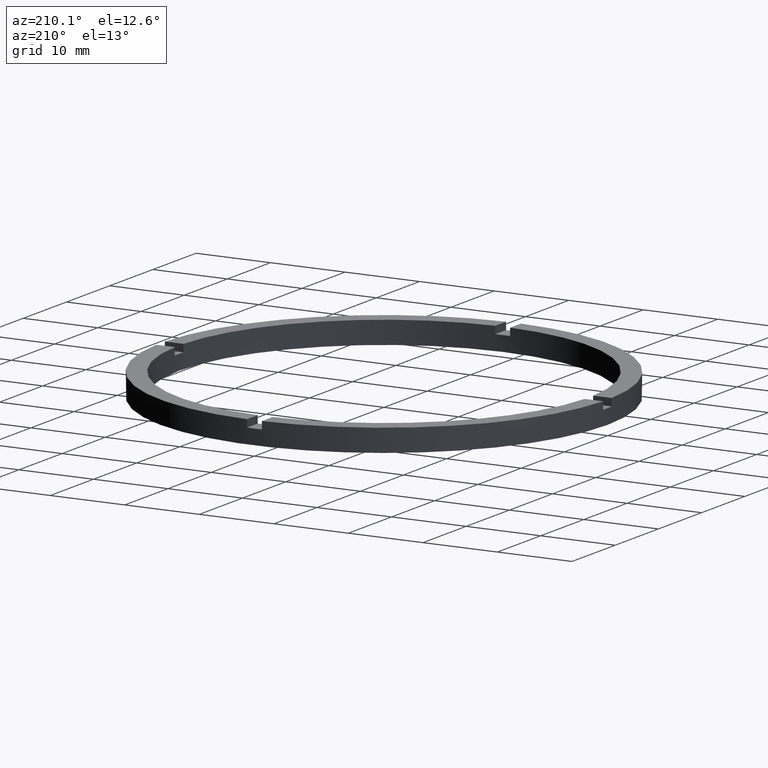
[diagram: clean part render]
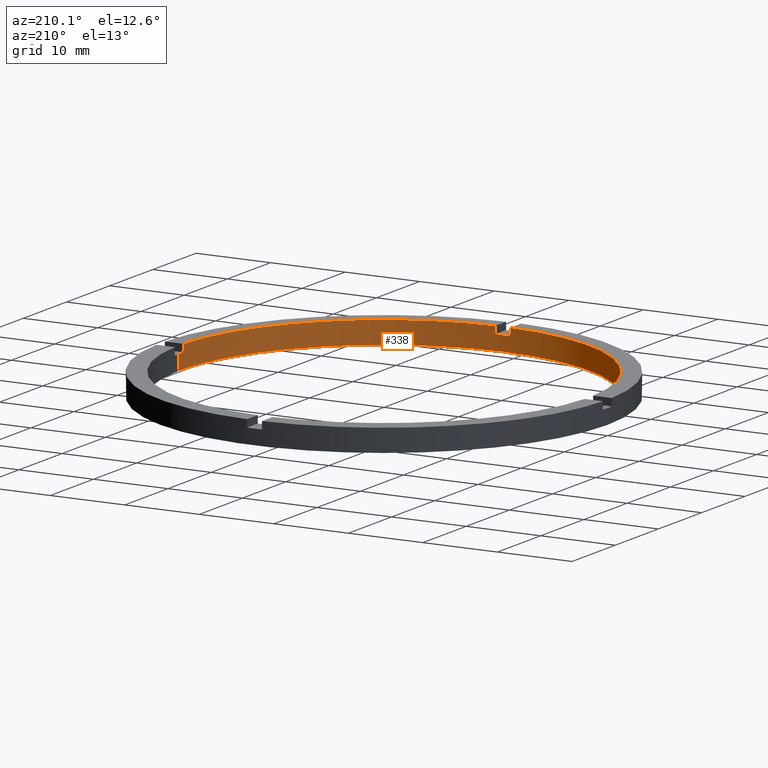
[diagram: same view with one face highlighted and labeled with its STEP entity id]
A machine part, auxiliary view. The second image highlights one B-rep face of the part: STEP entity #338.
In plain terms, the highlighted cylindrical surface (partial cylindrical patch) has radius 27.5 mm, axis along (-0, -0, -1).
Its self-contained STEP definition (entity closure, byte-faithful):
#2 = ORIENTED_EDGE ( 'NONE', *, *, #440, .F. ) ;
#8 = DIRECTION ( 'NONE',  ( 0.000000000000000000, 0.000000000000000000, 1.000000000000000000 ) ) ;
#15 = CARTESIAN_POINT ( 'NONE',  ( -1.000000000000159428, -27.48181216732258392, 3.000000000000000000 ) ) ;
#22 = VECTOR ( 'NONE', #313, 1000.000000000000000 ) ;
#33 = LINE ( 'NONE', #15, #296 ) ;
#34 = CIRCLE ( 'NONE', #760, 27.50000000000000000 ) ;
#37 = CIRCLE ( 'NONE', #153, 27.50000000000000000 ) ;
#45 = AXIS2_PLACEMENT_3D ( 'NONE', #59, #265, #444 ) ;
#51 = AXIS2_PLACEMENT_3D ( 'NONE', #626, #574, #225 ) ;
#59 = CARTESIAN_POINT ( 'NONE',  ( 0.000000000000000000, 0.000000000000000000, 3.000000000000000000 ) ) ;
#70 = LINE ( 'NONE', #449, #337 ) ;
#72 = CARTESIAN_POINT ( 'NONE',  ( 0.000000000000000000, 0.000000000000000000, 0.000000000000000000 ) ) ;
#83 = CARTESIAN_POINT ( 'NONE',  ( 0.9999999999998406830, -27.48181216732259458, 3.000000000000000000 ) ) ;
#97 = CARTESIAN_POINT ( 'NONE',  ( 0.000000000000000000, 0.000000000000000000, 2.000000000000000000 ) ) ;
#103 = CARTESIAN_POINT ( 'NONE',  ( 0.9999999999998406830, -27.48181216732259458, 2.000000000000000000 ) ) ;
#104 = AXIS2_PLACEMENT_3D ( 'NONE', #434, #734, #212 ) ;
#108 = CYLINDRICAL_SURFACE ( 'NONE', #192, 27.50000000000000000 ) ;
#122 = CARTESIAN_POINT ( 'NONE',  ( -27.50000000000000000, 0.000000000000000000, 0.000000000000000000 ) ) ;
#130 = ORIENTED_EDGE ( 'NONE', *, *, #327, .F. ) ;
#139 = CARTESIAN_POINT ( 'NONE',  ( 27.50000000000000000, 3.367778697655221307E-15, 3.000000000000000000 ) ) ;
#142 = DIRECTION ( 'NONE',  ( 1.000000000000000000, 0.000000000000000000, 0.000000000000000000 ) ) ;
#152 = DIRECTION ( 'NONE',  ( 0.000000000000000000, 0.000000000000000000, 1.000000000000000000 ) ) ;
#153 = AXIS2_PLACEMENT_3D ( 'NONE', #72, #8, #649 ) ;
#154 = ORIENTED_EDGE ( 'NONE', *, *, #480, .F. ) ;
#155 = ORIENTED_EDGE ( 'NONE', *, *, #727, .F. ) ;
#157 = EDGE_CURVE ( 'NONE', #241, #690, #285, .T. ) ;
#159 = VECTOR ( 'NONE', #500, 1000.000000000000000 ) ;
#161 = LINE ( 'NONE', #250, #423 ) ;
#187 = ORIENTED_EDGE ( 'NONE', *, *, #765, .T. ) ;
#192 = AXIS2_PLACEMENT_3D ( 'NONE', #505, #198, #656 ) ;
#197 = EDGE_CURVE ( 'NONE', #674, #395, #34, .T. ) ;
#198 = DIRECTION ( 'NONE',  ( -0.000000000000000000, -0.000000000000000000, -1.000000000000000000 ) ) ;
#205 = ORIENTED_EDGE ( 'NONE', *, *, #731, .T. ) ;
#212 = DIRECTION ( 'NONE',  ( 1.000000000000000000, 0.000000000000000000, 0.000000000000000000 ) ) ;
#215 = DIRECTION ( 'NONE',  ( -0.000000000000000000, -0.000000000000000000, -1.000000000000000000 ) ) ;
#225 = DIRECTION ( 'NONE',  ( 1.000000000000000000, 0.000000000000000000, 0.000000000000000000 ) ) ;
#241 = VERTEX_POINT ( 'NONE', #519 ) ;
#246 = CARTESIAN_POINT ( 'NONE',  ( -27.48181216732259102, -1.000000000000027756, 2.000000000000000000 ) ) ;
#248 = CARTESIAN_POINT ( 'NONE',  ( 27.50000000000000000, 3.367778697655221307E-15, 2.000000000000000000 ) ) ;
#250 = CARTESIAN_POINT ( 'NONE',  ( -27.50000000000000000, 0.000000000000000000, 3.000000000000000000 ) ) ;
#253 = VERTEX_POINT ( 'NONE', #330 ) ;
#265 = DIRECTION ( 'NONE',  ( 0.000000000000000000, 0.000000000000000000, 1.000000000000000000 ) ) ;
#285 = LINE ( 'NONE', #83, #22 ) ;
#296 = VECTOR ( 'NONE', #610, 1000.000000000000000 ) ;
#307 = EDGE_CURVE ( 'NONE', #452, #518, #418, .T. ) ;
#313 = DIRECTION ( 'NONE',  ( -0.000000000000000000, -0.000000000000000000, -1.000000000000000000 ) ) ;
#315 = CARTESIAN_POINT ( 'NONE',  ( -27.48181216732259102, -1.000000000000027756, 3.000000000000000000 ) ) ;
#316 = DIRECTION ( 'NONE',  ( 0.000000000000000000, 0.000000000000000000, 1.000000000000000000 ) ) ;
#321 = EDGE_CURVE ( 'NONE', #241, #253, #412, .T. ) ;
#324 = VECTOR ( 'NONE', #215, 1000.000000000000000 ) ;
#327 = EDGE_CURVE ( 'NONE', #674, #521, #668, .T. ) ;
#330 = CARTESIAN_POINT ( 'NONE',  ( 27.48181216732258392, -1.000000000000156319, 3.000000000000000000 ) ) ;
#331 = EDGE_CURVE ( 'NONE', #406, #497, #161, .T. ) ;
#337 = VECTOR ( 'NONE', #508, 1000.000000000000000 ) ;
#338 = ADVANCED_FACE ( 'NONE', ( #681 ), #108, .F. ) ;
#341 = LINE ( 'NONE', #139, #324 ) ;
#343 = CARTESIAN_POINT ( 'NONE',  ( 27.50000000000000000, 3.367778697655221307E-15, 0.000000000000000000 ) ) ;
#377 = CARTESIAN_POINT ( 'NONE',  ( 27.48181216732258392, -1.000000000000156319, 2.000000000000000000 ) ) ;
#395 = VERTEX_POINT ( 'NONE', #546 ) ;
#406 = VERTEX_POINT ( 'NONE', #677 ) ;
#407 = AXIS2_PLACEMENT_3D ( 'NONE', #97, #152, #634 ) ;
#412 = CIRCLE ( 'NONE', #45, 27.50000000000000000 ) ;
#418 = CIRCLE ( 'NONE', #104, 27.50000000000000000 ) ;
#423 = VECTOR ( 'NONE', #612, 1000.000000000000000 ) ;
#429 = ORIENTED_EDGE ( 'NONE', *, *, #307, .T. ) ;
#434 = CARTESIAN_POINT ( 'NONE',  ( 0.000000000000000000, 0.000000000000000000, 2.000000000000000000 ) ) ;
#440 = EDGE_CURVE ( 'NONE', #686, #395, #33, .T. ) ;
#444 = DIRECTION ( 'NONE',  ( 1.000000000000000000, 0.000000000000000000, 0.000000000000000000 ) ) ;
#449 = CARTESIAN_POINT ( 'NONE',  ( 27.48181216732258392, -1.000000000000156319, 3.000000000000000000 ) ) ;
#451 = ORIENTED_EDGE ( 'NONE', *, *, #331, .F. ) ;
#452 = VERTEX_POINT ( 'NONE', #377 ) ;
#461 = CARTESIAN_POINT ( 'NONE',  ( -1.000000000000159428, -27.48181216732258392, 2.000000000000000000 ) ) ;
#477 = ORIENTED_EDGE ( 'NONE', *, *, #769, .T. ) ;
#480 = EDGE_CURVE ( 'NONE', #497, #755, #37, .T. ) ;
#497 = VERTEX_POINT ( 'NONE', #122 ) ;
#500 = DIRECTION ( 'NONE',  ( -0.000000000000000000, -0.000000000000000000, -1.000000000000000000 ) ) ;
#505 = CARTESIAN_POINT ( 'NONE',  ( 0.000000000000000000, 0.000000000000000000, 3.000000000000000000 ) ) ;
#508 = DIRECTION ( 'NONE',  ( 0.000000000000000000, 0.000000000000000000, 1.000000000000000000 ) ) ;
#518 = VERTEX_POINT ( 'NONE', #248 ) ;
#519 = CARTESIAN_POINT ( 'NONE',  ( 0.9999999999998406830, -27.48181216732259458, 3.000000000000000000 ) ) ;
#521 = VERTEX_POINT ( 'NONE', #246 ) ;
#523 = ORIENTED_EDGE ( 'NONE', *, *, #157, .F. ) ;
#546 = CARTESIAN_POINT ( 'NONE',  ( -1.000000000000159428, -27.48181216732258392, 3.000000000000000000 ) ) ;
#574 = DIRECTION ( 'NONE',  ( -0.000000000000000000, 0.000000000000000000, 1.000000000000000000 ) ) ;
#585 = CIRCLE ( 'NONE', #51, 27.50000000000000000 ) ;
#592 = CIRCLE ( 'NONE', #407, 27.50000000000000000 ) ;
#610 = DIRECTION ( 'NONE',  ( 0.000000000000000000, 0.000000000000000000, 1.000000000000000000 ) ) ;
#612 = DIRECTION ( 'NONE',  ( -0.000000000000000000, -0.000000000000000000, -1.000000000000000000 ) ) ;
#616 = CARTESIAN_POINT ( 'NONE',  ( 0.000000000000000000, 0.000000000000000000, 3.000000000000000000 ) ) ;
#622 = CARTESIAN_POINT ( 'NONE',  ( -27.48181216732259102, -1.000000000000027756, 3.000000000000000000 ) ) ;
#626 = CARTESIAN_POINT ( 'NONE',  ( 0.000000000000000000, 0.000000000000000000, 2.000000000000000000 ) ) ;
#634 = DIRECTION ( 'NONE',  ( 1.000000000000000000, 0.000000000000000000, 0.000000000000000000 ) ) ;
#642 = ORIENTED_EDGE ( 'NONE', *, *, #197, .T. ) ;
#643 = ORIENTED_EDGE ( 'NONE', *, *, #321, .T. ) ;
#649 = DIRECTION ( 'NONE',  ( 1.000000000000000000, 0.000000000000000000, 0.000000000000000000 ) ) ;
#656 = DIRECTION ( 'NONE',  ( -1.000000000000000000, 0.000000000000000000, 0.000000000000000000 ) ) ;
#668 = LINE ( 'NONE', #315, #159 ) ;
#674 = VERTEX_POINT ( 'NONE', #622 ) ;
#677 = CARTESIAN_POINT ( 'NONE',  ( -27.50000000000000000, 0.000000000000000000, 2.000000000000000000 ) ) ;
#681 = FACE_OUTER_BOUND ( 'NONE', #754, .T. ) ;
#686 = VERTEX_POINT ( 'NONE', #461 ) ;
#690 = VERTEX_POINT ( 'NONE', #103 ) ;
#727 = EDGE_CURVE ( 'NONE', #452, #253, #70, .T. ) ;
#731 = EDGE_CURVE ( 'NONE', #686, #690, #585, .T. ) ;
#734 = DIRECTION ( 'NONE',  ( 0.000000000000000000, -0.000000000000000000, 1.000000000000000000 ) ) ;
#754 = EDGE_LOOP ( 'NONE', ( #429, #477, #154, #451, #187, #130, #642, #2, #205, #523, #643, #155 ) ) ;
#755 = VERTEX_POINT ( 'NONE', #343 ) ;
#760 = AXIS2_PLACEMENT_3D ( 'NONE', #616, #316, #142 ) ;
#765 = EDGE_CURVE ( 'NONE', #406, #521, #592, .T. ) ;
#769 = EDGE_CURVE ( 'NONE', #518, #755, #341, .T. ) ;